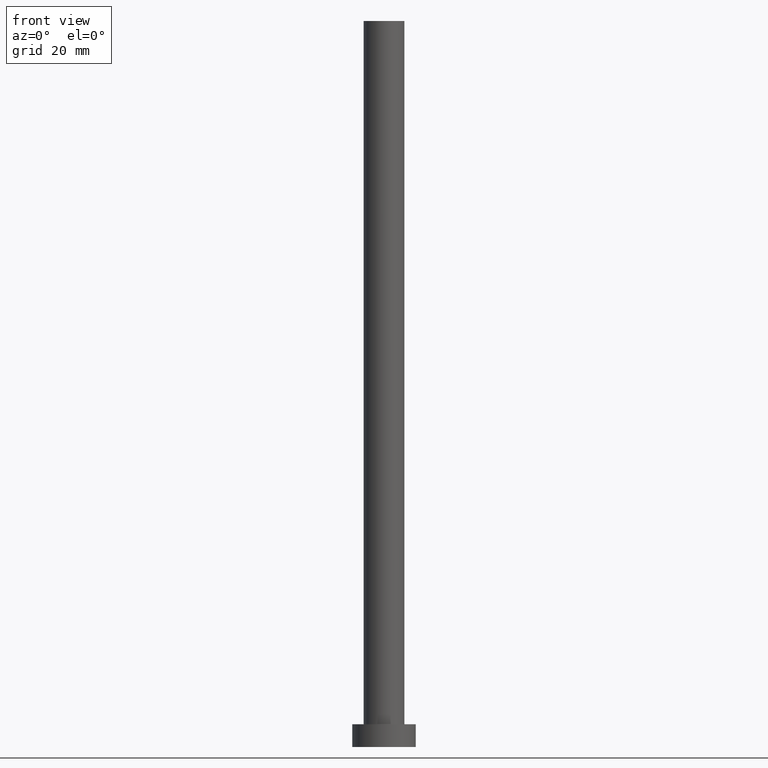
[diagram: clean part render]
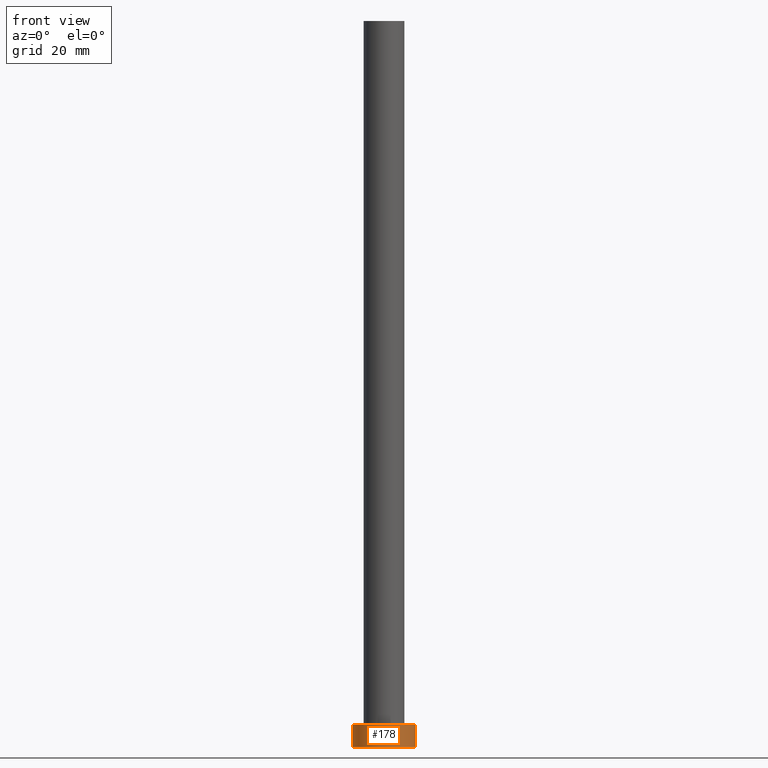
[diagram: same view with one face highlighted and labeled with its STEP entity id]
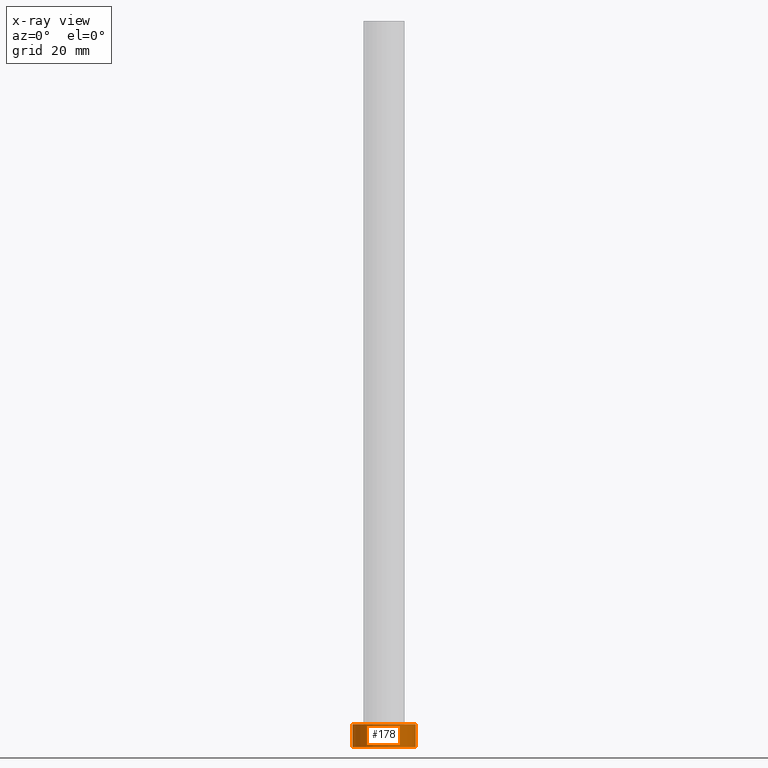
[diagram: x-ray of the same camera — body ghosted, the highlighted face saturated]
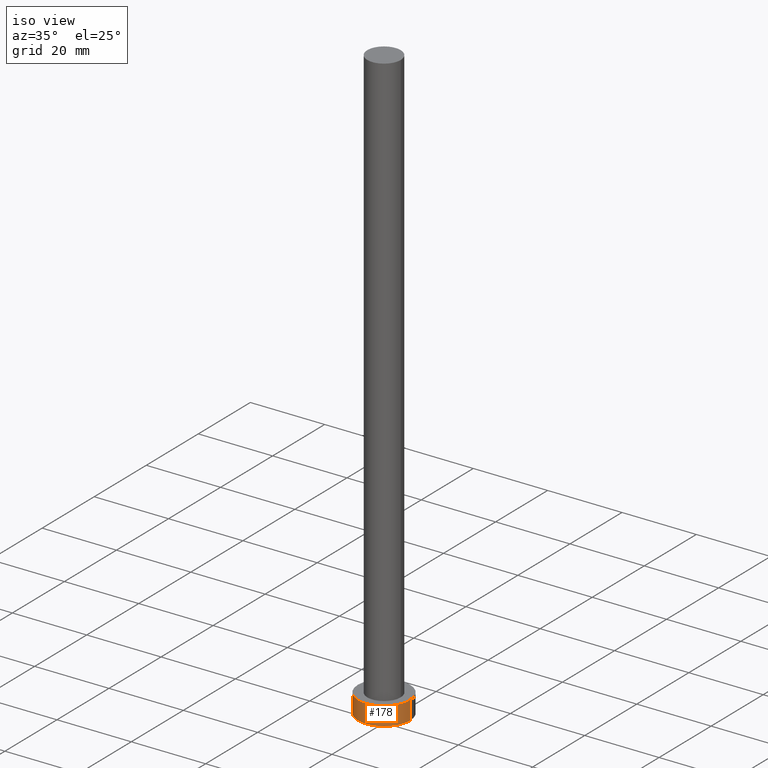
[diagram: same view with one face highlighted and labeled with its STEP entity id]
A machine part, front view. The second image highlights one B-rep face of the part: STEP entity #178.
The next image is the same camera in x-ray: the body ghosted, the highlighted face saturated — about 0% of this face is hidden behind the body in this view.
A second angle (iso view) of the same face is appended — the face is thin or edge-on in the first view.
In plain terms, the highlighted cylindrical surface (edge-blend (fillet) strip) has radius 7 mm, axis along (-0, -0, -1).
Its self-contained STEP definition (entity closure, byte-faithful):
#3 = AXIS2_PLACEMENT_3D ( 'NONE', #202, #183, #157 ) ;
#10 = EDGE_CURVE ( 'NONE', #211, #11, #73, .T. ) ;
#11 = VERTEX_POINT ( 'NONE', #234 ) ;
#12 = ORIENTED_EDGE ( 'NONE', *, *, #118, .T. ) ;
#14 = ORIENTED_EDGE ( 'NONE', *, *, #216, .T. ) ;
#21 = DIRECTION ( 'NONE',  ( -0.000000000000000000, -0.000000000000000000, -1.000000000000000000 ) ) ;
#24 = DIRECTION ( 'NONE',  ( -1.000000000000000000, 0.000000000000000000, 0.000000000000000000 ) ) ;
#38 = VECTOR ( 'NONE', #21, 1000.000000000000000 ) ;
#41 = CARTESIAN_POINT ( 'NONE',  ( 0.000000000000000000, 0.000000000000000000, 5.000000000000000000 ) ) ;
#49 = VERTEX_POINT ( 'NONE', #54 ) ;
#52 = VERTEX_POINT ( 'NONE', #131 ) ;
#54 = CARTESIAN_POINT ( 'NONE',  ( -7.000000000000000000, 0.000000000000000000, 0.000000000000000000 ) ) ;
#72 = EDGE_LOOP ( 'NONE', ( #88, #250, #14, #12 ) ) ;
#73 = LINE ( 'NONE', #248, #125 ) ;
#75 = AXIS2_PLACEMENT_3D ( 'NONE', #119, #198, #238 ) ;
#81 = EDGE_CURVE ( 'NONE', #52, #211, #132, .T. ) ;
#88 = ORIENTED_EDGE ( 'NONE', *, *, #10, .F. ) ;
#100 = CARTESIAN_POINT ( 'NONE',  ( -7.000000000000000000, 0.000000000000000000, 5.000000000000000000 ) ) ;
#101 = CIRCLE ( 'NONE', #75, 7.000000000000000000 ) ;
#116 = FACE_OUTER_BOUND ( 'NONE', #72, .T. ) ;
#118 = EDGE_CURVE ( 'NONE', #49, #11, #101, .T. ) ;
#119 = CARTESIAN_POINT ( 'NONE',  ( 0.000000000000000000, 0.000000000000000000, 0.000000000000000000 ) ) ;
#122 = LINE ( 'NONE', #100, #38 ) ;
#125 = VECTOR ( 'NONE', #208, 1000.000000000000000 ) ;
#131 = CARTESIAN_POINT ( 'NONE',  ( -7.000000000000000000, 0.000000000000000000, 5.000000000000000000 ) ) ;
#132 = CIRCLE ( 'NONE', #3, 7.000000000000000000 ) ;
#140 = DIRECTION ( 'NONE',  ( -0.000000000000000000, -0.000000000000000000, -1.000000000000000000 ) ) ;
#157 = DIRECTION ( 'NONE',  ( 1.000000000000000000, 0.000000000000000000, 0.000000000000000000 ) ) ;
#178 = ADVANCED_FACE ( 'NONE', ( #116 ), #197, .T. ) ;
#183 = DIRECTION ( 'NONE',  ( 0.000000000000000000, 0.000000000000000000, 1.000000000000000000 ) ) ;
#197 = CYLINDRICAL_SURFACE ( 'NONE', #210, 7.000000000000000000 ) ;
#198 = DIRECTION ( 'NONE',  ( 0.000000000000000000, 0.000000000000000000, 1.000000000000000000 ) ) ;
#202 = CARTESIAN_POINT ( 'NONE',  ( 0.000000000000000000, 0.000000000000000000, 5.000000000000000000 ) ) ;
#208 = DIRECTION ( 'NONE',  ( -0.000000000000000000, -0.000000000000000000, -1.000000000000000000 ) ) ;
#210 = AXIS2_PLACEMENT_3D ( 'NONE', #41, #140, #24 ) ;
#211 = VERTEX_POINT ( 'NONE', #218 ) ;
#216 = EDGE_CURVE ( 'NONE', #52, #49, #122, .T. ) ;
#218 = CARTESIAN_POINT ( 'NONE',  ( 7.000000000000000000, 8.572527594031473190E-16, 5.000000000000000000 ) ) ;
#234 = CARTESIAN_POINT ( 'NONE',  ( 7.000000000000000000, 8.572527594031473190E-16, 0.000000000000000000 ) ) ;
#238 = DIRECTION ( 'NONE',  ( 1.000000000000000000, 0.000000000000000000, 0.000000000000000000 ) ) ;
#248 = CARTESIAN_POINT ( 'NONE',  ( 7.000000000000000000, 8.572527594031473190E-16, 5.000000000000000000 ) ) ;
#250 = ORIENTED_EDGE ( 'NONE', *, *, #81, .F. ) ;